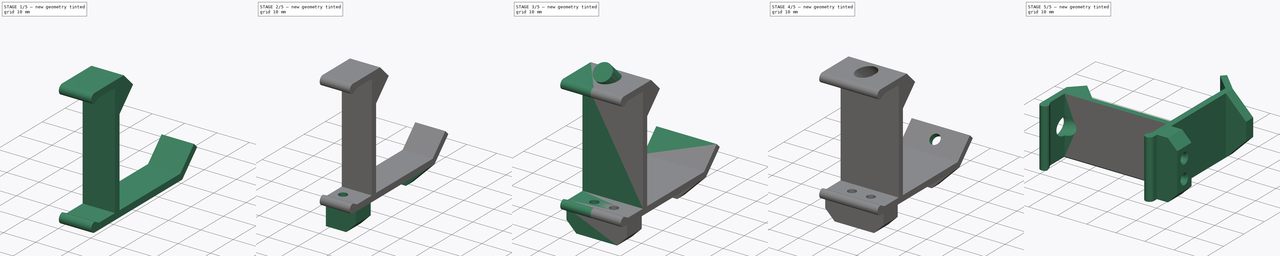
[diagram: build sequence overview — one tinted view per stage of 5, left to right]
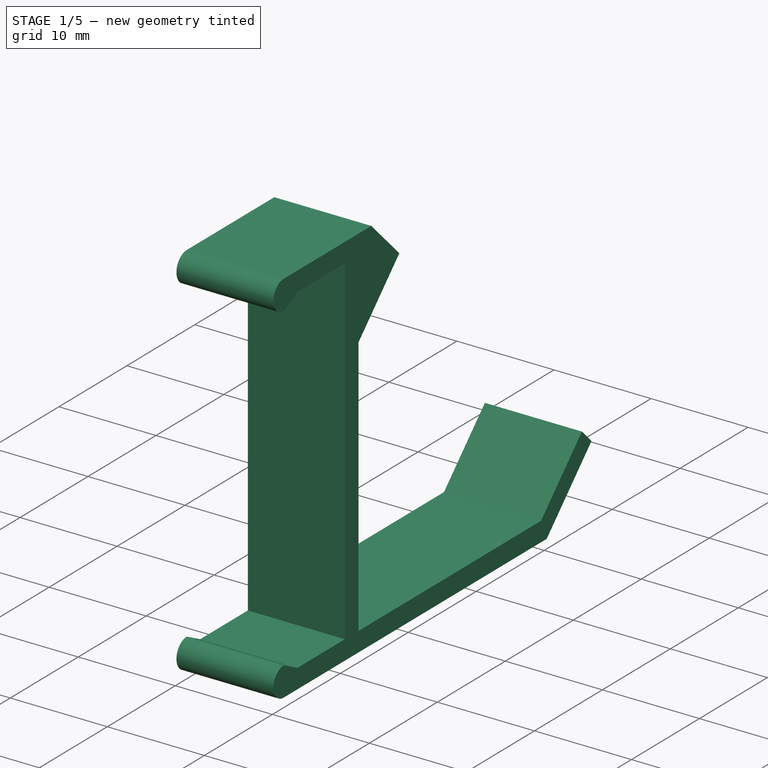
[diagram: stage 1 of 5 — iso view after this stage's code; geometry added in this stage tinted green]
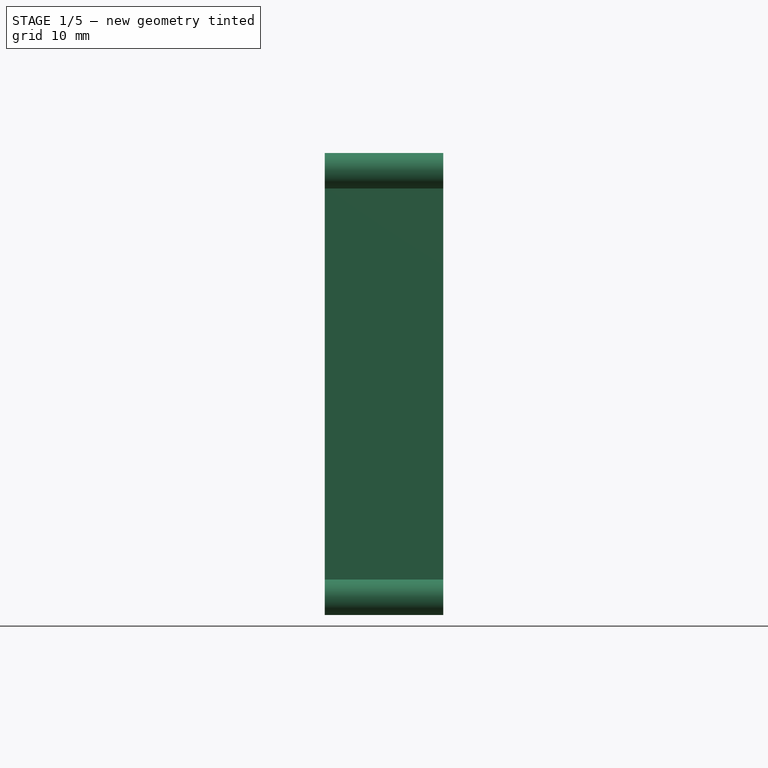
[diagram: stage 1 of 5 — front view after this stage's code; geometry added in this stage tinted green]
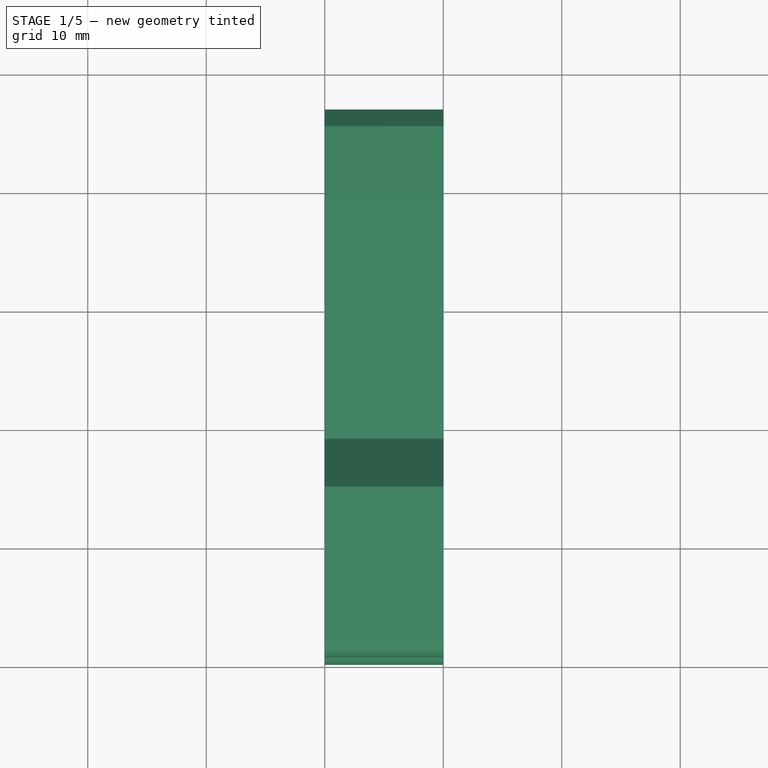
[diagram: stage 1 of 5 — top view after this stage's code; geometry added in this stage tinted green]
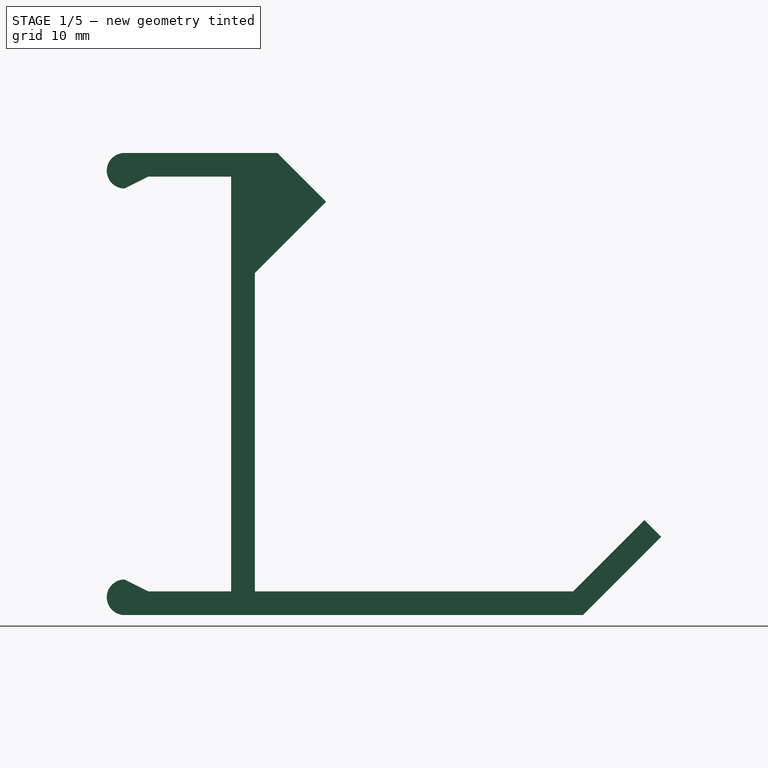
[diagram: stage 1 of 5 — right view after this stage's code; geometry added in this stage tinted green]
FCSTD DOCUMENT  (FreeCAD 0.14R3692 (Git))
Label: board-bracket
License: The MIT License
LicenseURL: http://opensource.org/licenses/MIT
objects: Sketcher::SketchObject×5, PartDesign::Pad×3, Part::Chamfer×3, Part::Feature×3, PartDesign::Pocket×2, Part::FeaturePython×2, Part::Thickness×1, Part::Cylinder×1, Part::Mirroring×1, Part::MultiFuse×1, Part::Cut×1, App::DocumentObjectGroup×1
note: 28 computed .brp shape members not serialized (recipe doc carries the construction recipe); baked Part::Feature solids carry a one-line shape summary decoded from their .brp

FEATURE [Sketcher::SketchObject] Sketch  label="bracket-sketch"
  Placement = pos=(0,0,0) rot=(0.57735,0.57735,0.57735;2.0944rad)
  sketch-geometry (6):
    g0: LineSegment StartX=-11.3137 StartY=16.9706 StartZ=0 EndX=-17.3241 EndY=10.9602 EndZ=0
    g1: LineSegment StartX=-17.3241 StartY=10.9602 StartZ=0 EndX=-17.3241 EndY=-15.9099 EndZ=0
    g2: LineSegment StartX=-17.3241 StartY=-15.9099 StartZ=0 EndX=9.54594 EndY=-15.9099 EndZ=0
    g3: LineSegment StartX=9.54594 StartY=-15.9099 StartZ=0 EndX=15.5563 EndY=-9.89949 EndZ=0
    g4: LineSegment StartX=15.5563 StartY=-9.89949 StartZ=0 EndX=-11.3137 EndY=16.9706 EndZ=0
    g5: LineSegment [constr] StartX=-14.1421 StartY=14.1421 StartZ=0 EndX=12.7279 EndY=-12.7279 EndZ=0
  constraints (16):
    c: Coincident(g0,g1)
    c: Coincident(g2,g3)
    c: Perpendicular(g1,g2)
    c: Equal(g3,g0)
    c: Angle(g3,g2) = 2.35619
    c: Perpendicular(g3,g4)
    c: Perpendicular(g0,g4)
    c: PointOnObject(g-1,g5)
    c: Distance(g-1,g5) = 18
    c: Distance(g-1,g5) = 20
    c: Perpendicular(g0,g5)
    c: PointOnObject(g5,g3)
    c: Angle(g4,g-1) = 0.785398
    c: Distance(g5,g0) = 4
    c: PointOnObject(g5,g0)
    c: Distance(g5,g0) = 4.5
FEATURE [PartDesign::Pad] Pad  label="bracket-pad"
  Length = 10
  Length2 = 100
  Placement = pos=(0,0,0) rot=(0.57735,0.57735,0.57735;2.0944rad)
  Sketch = -> Sketch
  Type = 0
FEATURE [Part::Thickness] Thickness  label="bracket-thickness"
  Faces = -> Pad [Face7,Face5,Face6]
  Intersection = false
  Join = 2
  Mode = 0
  SelfIntersection = false
  Value = 2
FEATURE [Sketcher::SketchObject] Sketch001  label="board-sketch"
  ExternalGeometry = -> [Thickness]
  Placement = pos=(10,0,0) rot=(0.57735,0.57735,0.57735;2.0944rad)
  Support = -> Thickness [Face5]
  sketch-geometry (13):
    g0: LineSegment StartX=-19.3241 StartY=-17.9099 StartZ=0 EndX=-28.3241 EndY=-17.9099 EndZ=0
    g1: ArcOfCircle CenterX=-28.3241 CenterY=-16.4099 CenterZ=0 NormalX=0 NormalY=0 NormalZ=1 Radius=1.5 StartAngle=1.5708 EndAngle=4.71239
    g2: LineSegment StartX=-28.3241 StartY=-14.9099 StartZ=0 EndX=-26.3241 EndY=-15.9099 EndZ=0
    g3: LineSegment StartX=-26.3241 StartY=-15.9099 StartZ=0 EndX=-19.3241 EndY=-15.9099 EndZ=0
    g4: LineSegment StartX=-19.3241 StartY=-15.9099 StartZ=0 EndX=-19.3241 EndY=-17.9099 EndZ=0
    g5: LineSegment StartX=-15.4332 StartY=21.0901 StartZ=0 EndX=-28.3241 EndY=21.0901 EndZ=0
    g6: ArcOfCircle CenterX=-28.3241 CenterY=19.5901 CenterZ=0 NormalX=0 NormalY=0 NormalZ=1 Radius=1.5 StartAngle=1.5708 EndAngle=4.7124
    g7: LineSegment StartX=-28.3241 StartY=18.0901 StartZ=0 EndX=-26.3241 EndY=19.0901 EndZ=0
    g8: LineSegment StartX=-26.3241 StartY=19.0901 StartZ=0 EndX=-19.3241 EndY=19.0901 EndZ=0
    g9: LineSegment StartX=-15.4332 StartY=21.0901 StartZ=0 EndX=-12.7279 EndY=18.3848 EndZ=0
    g10: LineSegment StartX=-19.3241 StartY=19.0901 StartZ=0 EndX=-19.3241 EndY=11.7886 EndZ=0
    g11: LineSegment StartX=-19.3241 StartY=11.7886 StartZ=0 EndX=-12.7279 EndY=18.3848 EndZ=0
    g12: LineSegment StartX=-19.3241 StartY=-15.9099 StartZ=0 EndX=-19.3241 EndY=-17.9099 EndZ=0
  constraints (34):
    c: Horizontal(g0)
    c: Tangent(g0,g1)
    c: Coincident(g2,g3)
    c: Horizontal(g3)
    c: Coincident(g3,g4)
    c: Coincident(g4,g0)
    c: DistanceY(g4) = -2
    c: Radius(g1) = 1.5
    c: DistanceX(g3) = 7
    c: DistanceX(g0) = -9
    c: Horizontal(g5)
    c: Tangent(g5,g6)
    c: Coincident(g7,g8)
    c: Horizontal(g8)
    c: Equal(g8,g3)
    c: Equal(g6,g1)
    c: Coincident(g6,g7)
    c: Distance(g8,g5) = 2
    c: Coincident(g1,g2)
    c: DistanceX(g1,g2) = 2
    c: Equal(g7,g2)
    c: Coincident(g9,g5)
    c: Coincident(g10,g8)
    c: Vertical(g10)
    c: Coincident(g11,g10)
    c: DistanceY(g8,g3) = -35
    c: DistanceY(g6,g1) = -33
    c: Coincident(g12,g3)
    c: Coincident(g12,g0)
    c: Vertical(g4)
    c: Coincident(g10,g-4)
    c: Perpendicular(g9,g11)
    c: Coincident(g9,g-4)
    c: Coincident(g0,g-3)
FEATURE [PartDesign::Pad] Pad001  label="board-pad"
  Length = 10
  Length2 = 100
  Reversed = true
  Sketch = -> Sketch001
  Type = 0
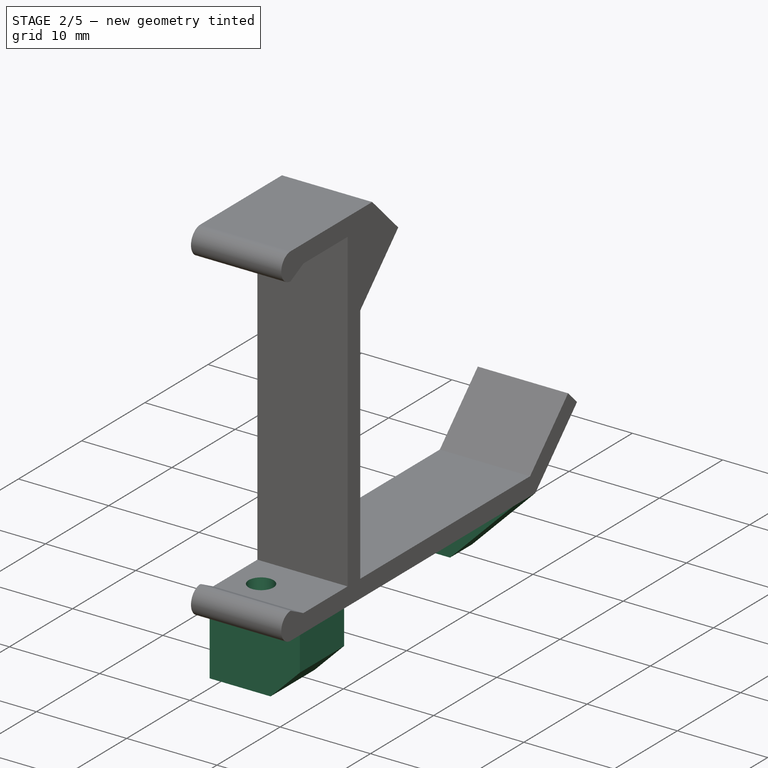
[diagram: stage 2 of 5 — iso view after this stage's code; geometry added in this stage tinted green]
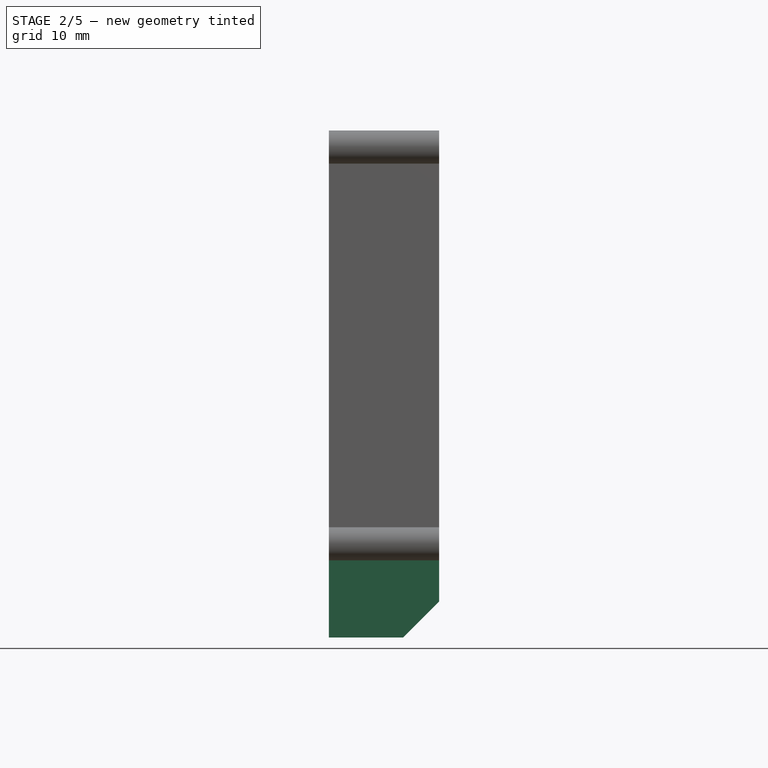
[diagram: stage 2 of 5 — front view after this stage's code; geometry added in this stage tinted green]
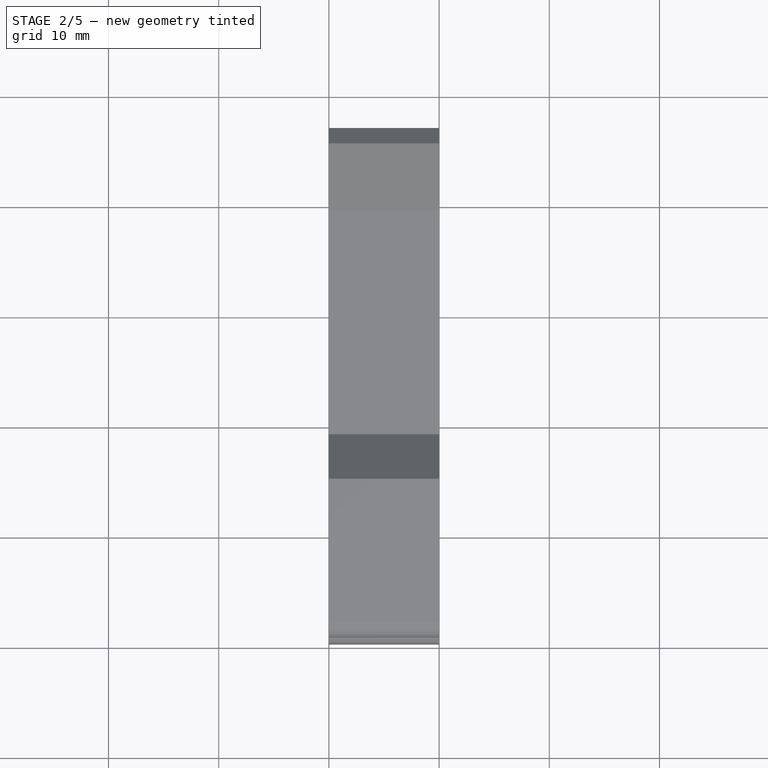
[diagram: stage 2 of 5 — top view after this stage's code; geometry added in this stage tinted green]
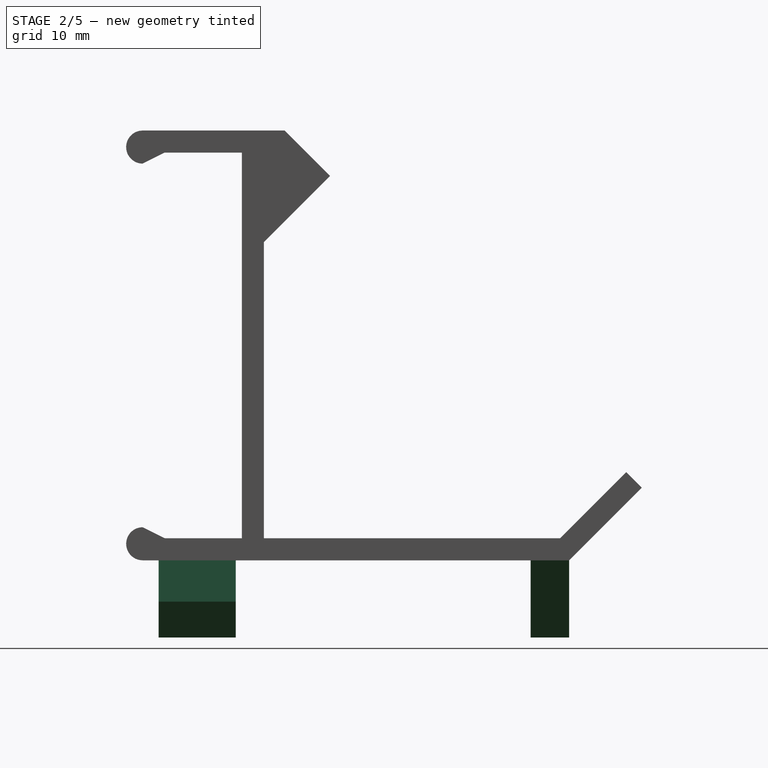
[diagram: stage 2 of 5 — right view after this stage's code; geometry added in this stage tinted green]
FEATURE [Sketcher::SketchObject] Sketch003  label="driver-sketch"
  ExternalGeometry = -> [Pad001]
  Placement = pos=(10,0,0) rot=(0.57735,0.57735,0.57735;2.0944rad)
  Support = -> Pad001 [Face15]
  sketch-geometry (8):
    g0: LineSegment StartX=-26.8756 StartY=-17.9099 StartZ=0 EndX=-19.8756 EndY=-17.9099 EndZ=0
    g1: LineSegment StartX=-19.8756 StartY=-17.9099 StartZ=0 EndX=-19.8756 EndY=-24.9099 EndZ=0
    g2: LineSegment StartX=-19.8756 StartY=-24.9099 StartZ=0 EndX=-26.8756 EndY=-24.9099 EndZ=0
    g3: LineSegment StartX=-26.8756 StartY=-24.9099 StartZ=0 EndX=-26.8756 EndY=-17.9099 EndZ=0
    g4: LineSegment StartX=6.87437 StartY=-17.9099 StartZ=0 EndX=10.3744 EndY=-17.9099 EndZ=0
    g5: LineSegment StartX=10.3744 StartY=-17.9099 StartZ=0 EndX=10.3744 EndY=-24.9099 EndZ=0
    g6: LineSegment StartX=10.3744 StartY=-24.9099 StartZ=0 EndX=6.87437 EndY=-24.9099 EndZ=0
    g7: LineSegment StartX=6.87437 StartY=-24.9099 StartZ=0 EndX=6.87437 EndY=-17.9099 EndZ=0
  constraints (23):
    c: Coincident(g0,g1)
    c: Coincident(g1,g2)
    c: Coincident(g2,g3)
    c: Coincident(g3,g0)
    c: Horizontal(g0)
    c: Horizontal(g2)
    c: Vertical(g1)
    c: Vertical(g3)
    c: Coincident(g5,g6)
    c: Coincident(g6,g7)
    c: Coincident(g7,g4)
    c: Horizontal(g4)
    c: Horizontal(g6)
    c: Vertical(g5)
    c: Vertical(g7)
    c: DistanceY(g3) = 7
    c: DistanceX(g2) = -7
    c: Equal(g5,g3)
    c: PointOnObject(g0,g-3)
    c: Coincident(g4,g5)
    c: Coincident(g4,g-3)
    c: DistanceX(g0,g4) = 37.25
    c: DistanceX(g6) = -3.5
FEATURE [PartDesign::Pad] Pad002  label="driver-pad"
  Length = 10
  Length2 = 100
  Reversed = true
  Sketch = -> Sketch003
  Type = 0
FEATURE [Sketcher::SketchObject] Sketch004  label="driver-screw-hole-sketch"
  Placement = pos=(0,0,-24.9099) rot=(1,0,0;3.14159rad)
  Support = -> Pad002 [Face23]
  sketch-geometry (2):
    g0: Circle CenterX=3.25 CenterY=23.3756 CenterZ=0 NormalX=0 NormalY=0 NormalZ=1 Radius=1.375
    g1: LineSegment [constr] StartX=3.25 StartY=23.3756 StartZ=0 EndX=10 EndY=23.3756 EndZ=0
  constraints (4):
    c: DistanceX(g-1,g0) = 3.25
    c: Radius(g0) = 1.375
    c: Horizontal(g1)
    c: Coincident(g0,g1)
FEATURE [PartDesign::Pocket] Pocket001  label="driver-screw-hole-pocket"
  Length = 10
  Sketch = -> Sketch004
  Type = 0
FEATURE [Part::Chamfer] Chamfer  label="driver-side-chamfer"
  Base = -> Pocket001
  Edges = 2 edges: [Edge42 r=3.25,Edge46 r=7]
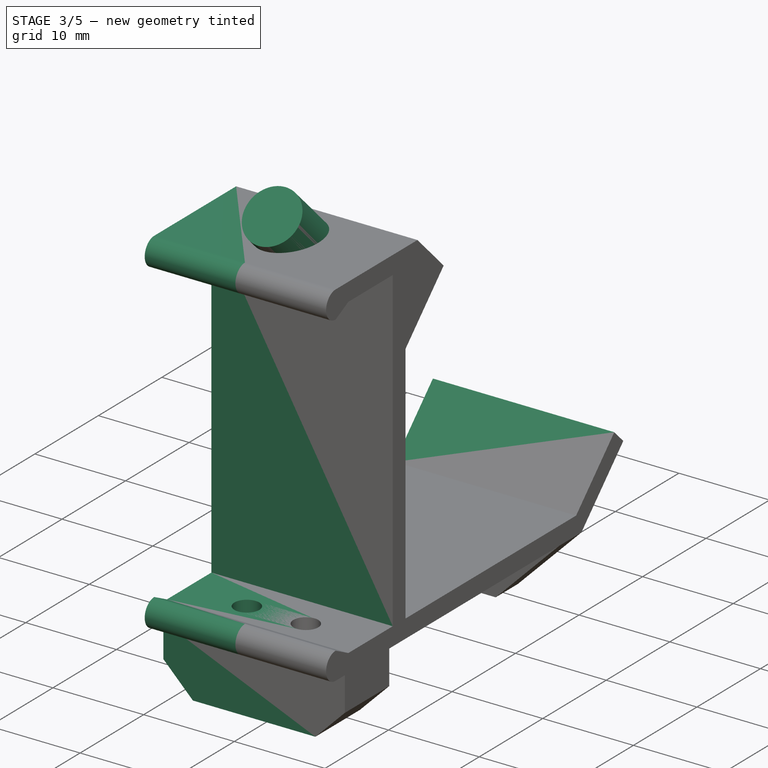
[diagram: stage 3 of 5 — iso view after this stage's code; geometry added in this stage tinted green]
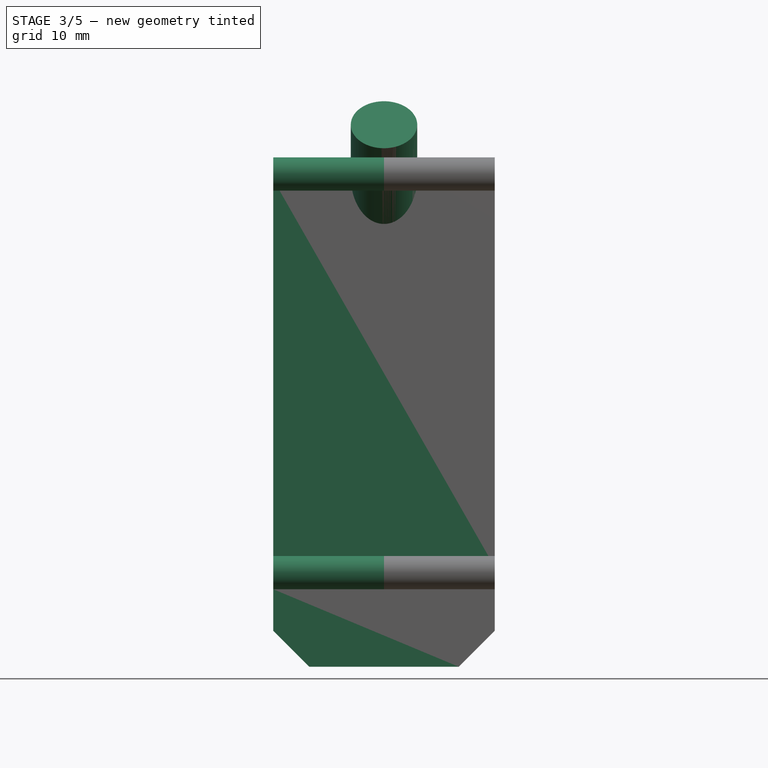
[diagram: stage 3 of 5 — front view after this stage's code; geometry added in this stage tinted green]
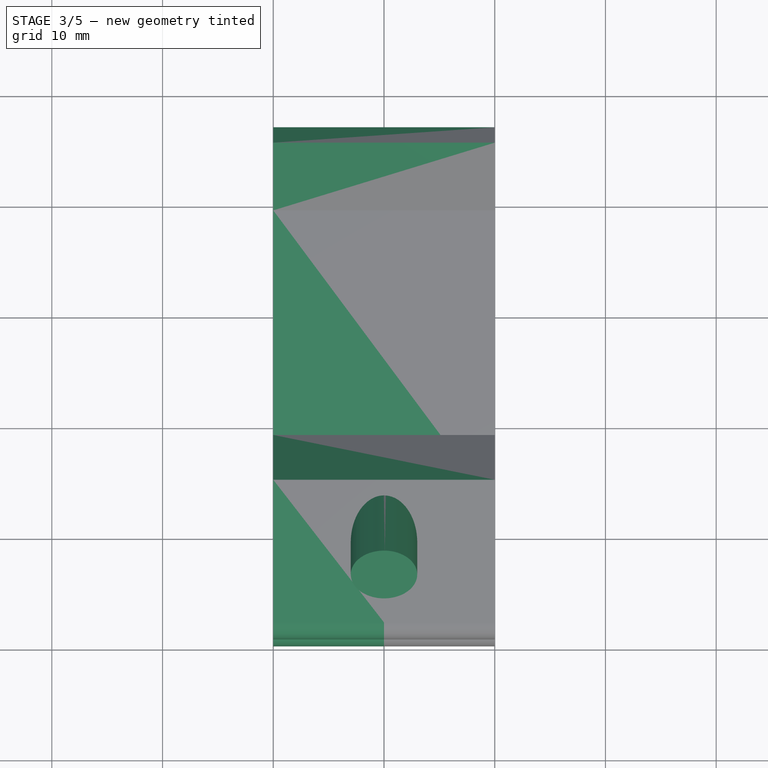
[diagram: stage 3 of 5 — top view after this stage's code; geometry added in this stage tinted green]
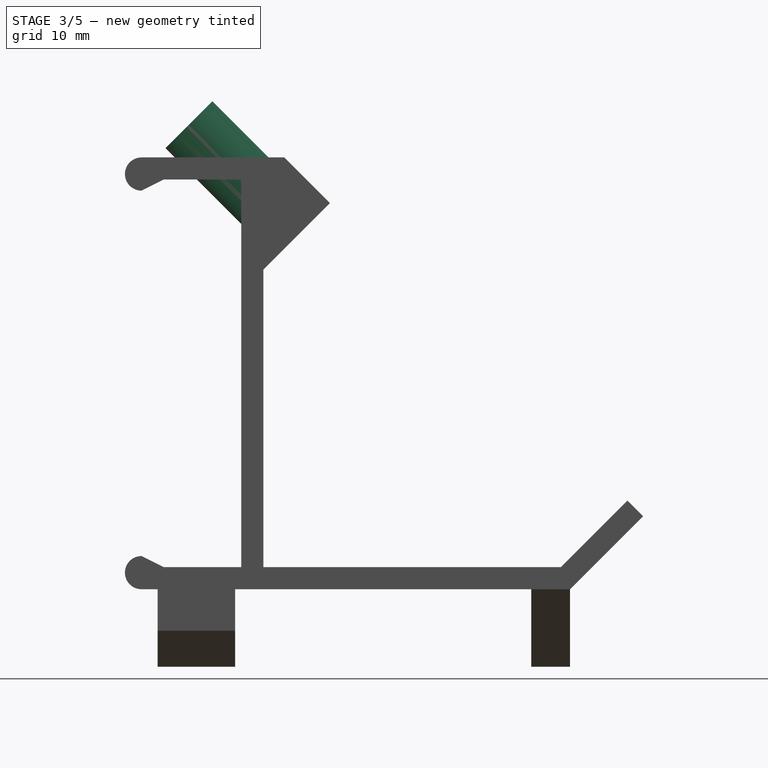
[diagram: stage 3 of 5 — right view after this stage's code; geometry added in this stage tinted green]
FEATURE [Part::Cylinder] Cylinder  label="screw-head-top-cylinder"
  Angle = 360
  Height = 12
  Placement = pos=(0,-15.5563,15.5563) rot=(1,0,0;0.785398rad)
  Radius = 3
FEATURE [Part::Mirroring] Part__Mirroring  label="driver-side-chamfer-mirror"
  Base = (0,0,0)
  Normal = (1,0,0)
  Source = -> Chamfer
FEATURE [Part::MultiFuse] Fusion001  label="bracket-fusion"
  Shapes = -> [Chamfer,Part__Mirroring]
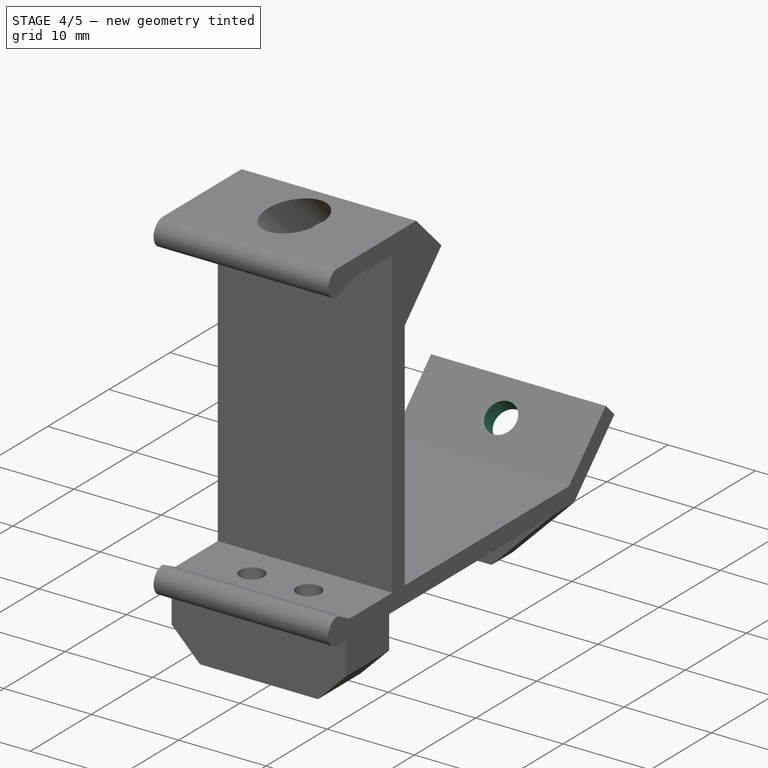
[diagram: stage 4 of 5 — iso view after this stage's code; geometry added in this stage tinted green]
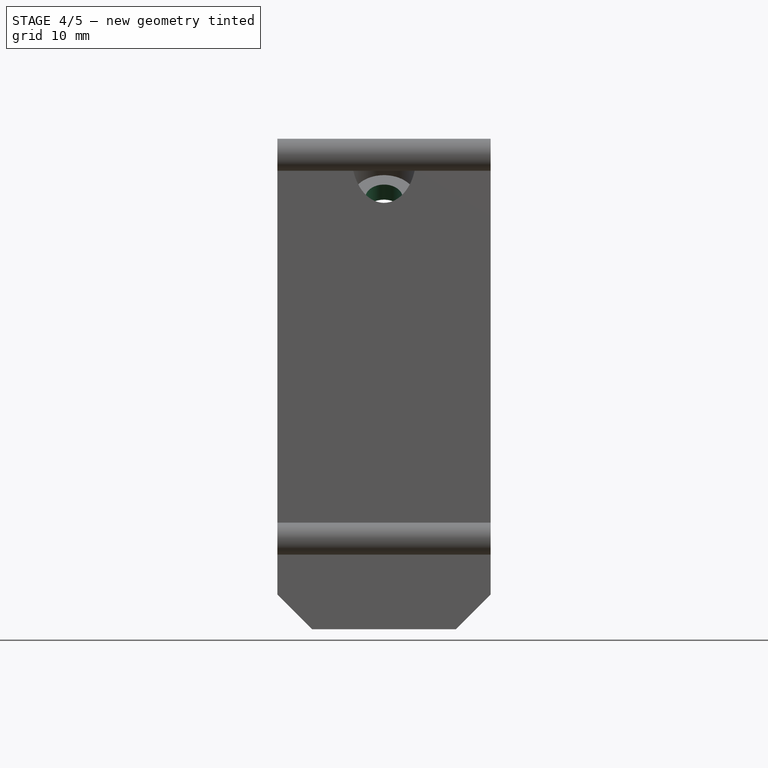
[diagram: stage 4 of 5 — front view after this stage's code; geometry added in this stage tinted green]
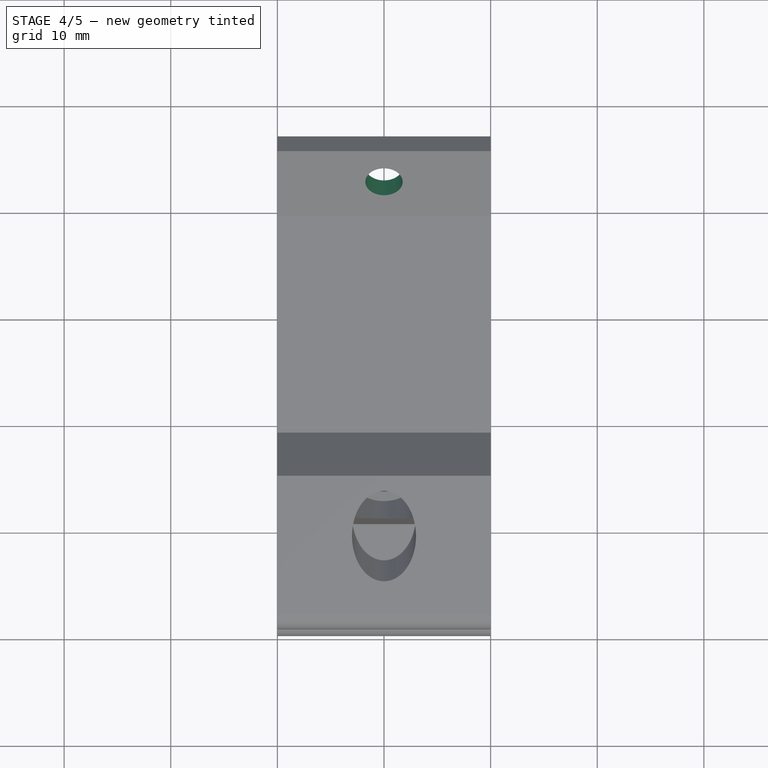
[diagram: stage 4 of 5 — top view after this stage's code; geometry added in this stage tinted green]
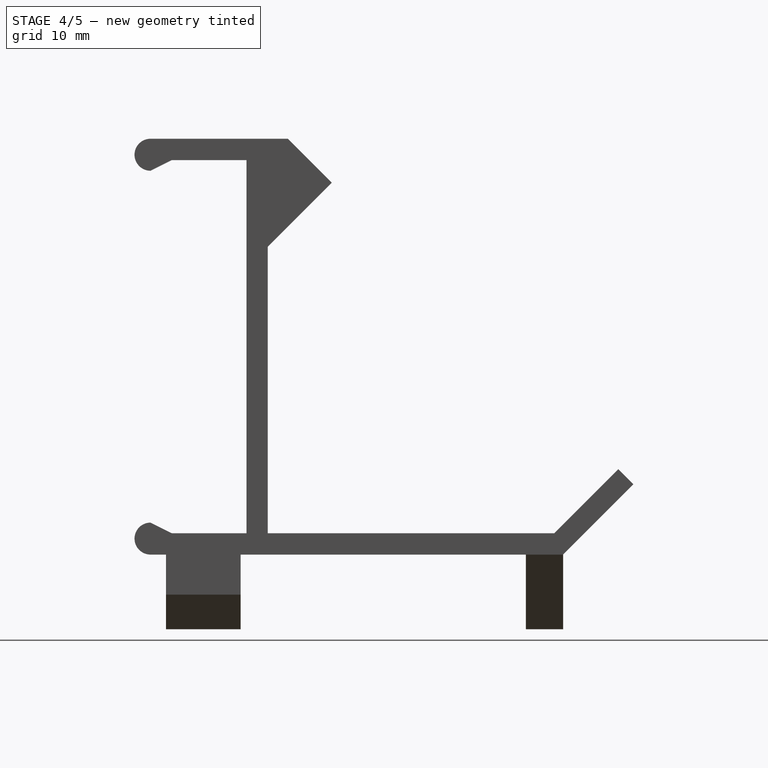
[diagram: stage 4 of 5 — right view after this stage's code; geometry added in this stage tinted green]
FEATURE [Sketcher::SketchObject] Sketch002  label="bracket-screw-hole-sketch"
  Placement = pos=(0,14.1421,-14.1421) rot=(1,0,0;3.92699rad)
  Support = -> Fusion001 [Face20]
  sketch-geometry (1):
    g0: Circle CenterX=0 CenterY=0 CenterZ=0 NormalX=0 NormalY=0 NormalZ=1 Radius=1.75
  constraints (2):
    c: Coincident(g0,g-1)
    c: Radius(g0) = 1.75
FEATURE [PartDesign::Pocket] Pocket  label="bracket-screw-hole-pocket"
  Length = 42
  Sketch = -> Sketch002
  Type = 0
FEATURE [Part::Cut] Cut  label="screw-head-top-cut"
  Base = -> Pocket
  Tool = -> Cylinder
FEATURE [Part::FeaturePython] Clone  label="board-bracket"  # Draft clone (typed FeaturePython)
  Objects = -> [Cut]
  Scale = (1,1,1)
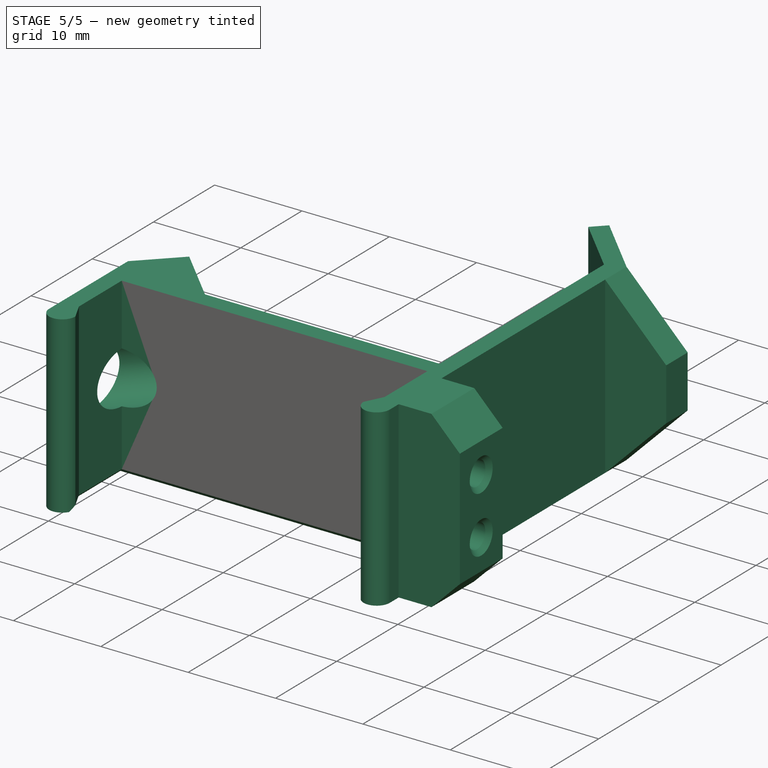
[diagram: stage 5 of 5 — iso view after this stage's code; geometry added in this stage tinted green]
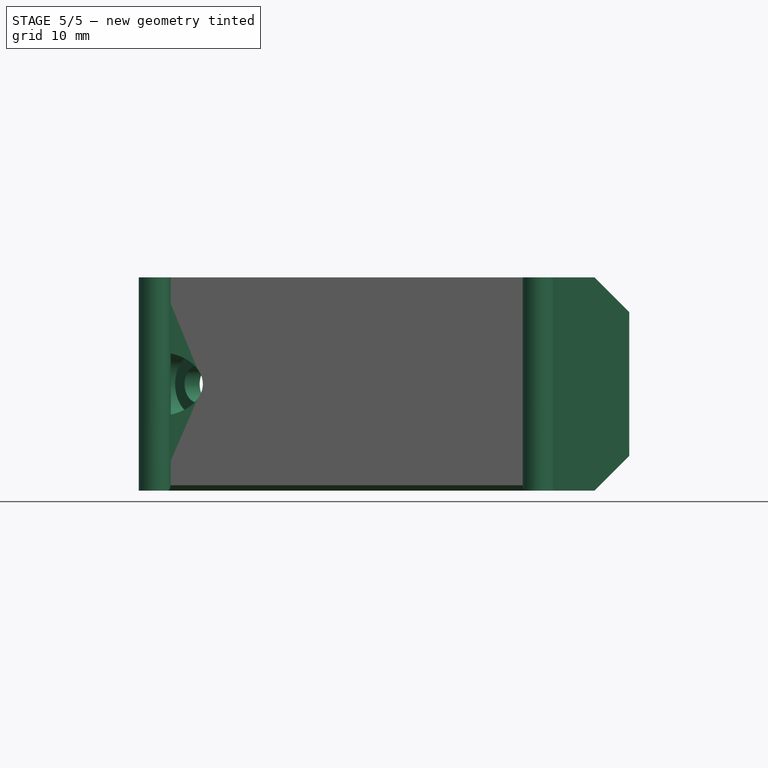
[diagram: stage 5 of 5 — front view after this stage's code; geometry added in this stage tinted green]
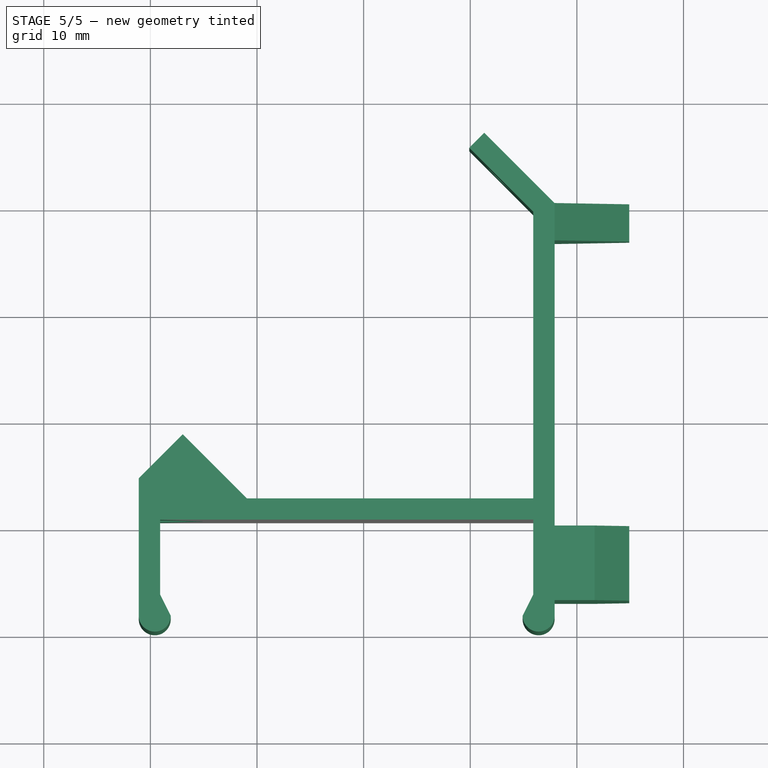
[diagram: stage 5 of 5 — top view after this stage's code; geometry added in this stage tinted green]
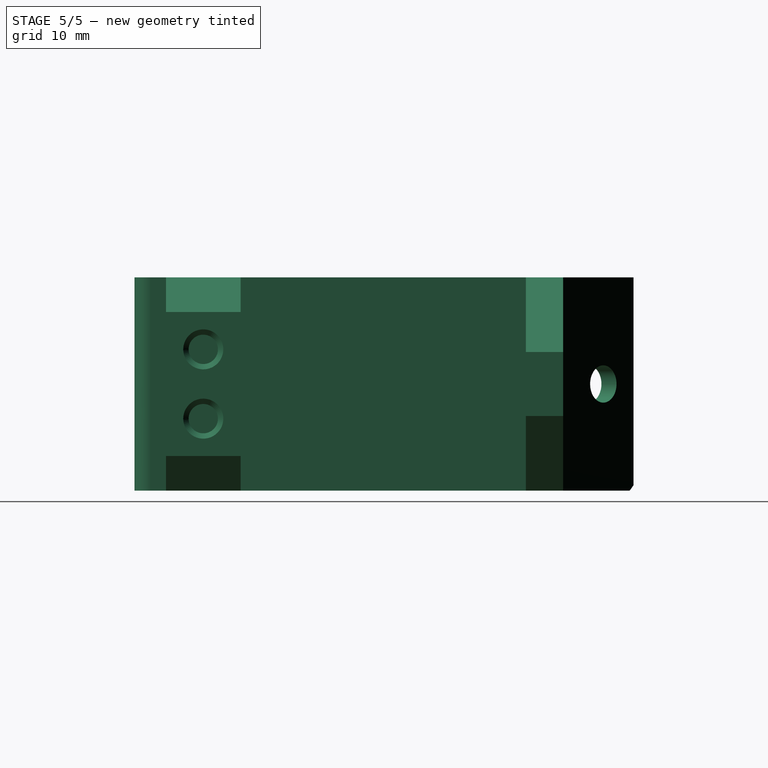
[diagram: stage 5 of 5 — right view after this stage's code; geometry added in this stage tinted green]
FEATURE [Part::Feature] Part__Feature  label="arduino-breadboard"
  Placement = pos=(22.25,-19.5741,1.5901) rot=(0.57735,-0.57735,0.57735;2.0944rad)
  shape: bbox 45.5 x 15.58 x 34.5 mm, 34 faces (baked)
FEATURE [Part::Feature] Part__Feature001  label="driver-board-right"
  Placement = pos=(-16.425,-8.25063,-24.9099) rot=(0.707107,-0.707107,0;3.14159rad)
  shape: bbox 31.5 x 35.1 x 9.299 mm, 54 faces (baked)
FEATURE [Part::Feature] Part__Feature002  label="driver-board-left"
  Placement = pos=(16.425,-8.25063,-24.9099) rot=(0.707107,-0.707107,0;3.14159rad)
  shape: bbox 31.5 x 35.1 x 9.299 mm, 54 faces (baked)
FEATURE [App::DocumentObjectGroup] Group  label="components"
  Group = -> [Part__Feature,Part__Feature001,Part__Feature002]
FEATURE [Part::Chamfer] Chamfer001  label="screw-chamfer"
  Base = -> Clone
  Edges = 2 edges r=0.5: [Edge31,Edge32]
FEATURE [Part::Chamfer] Chamfer002  label="printing-chamfer"
  Base = -> Chamfer001
  Edges = 9 edges r=0.5: [Edge47,Edge49,Edge51,Edge52,Edge53,Edge54,Edge55,Edge60,Edge61]
FEATURE [Part::FeaturePython] Clone001  label="board-bracket (printing)"  # Draft clone (typed FeaturePython)
  Objects = -> [Chamfer002]
  Placement = pos=(0,0,0) rot=(0,-1,0;1.5708rad)
  Scale = (1,1,1)
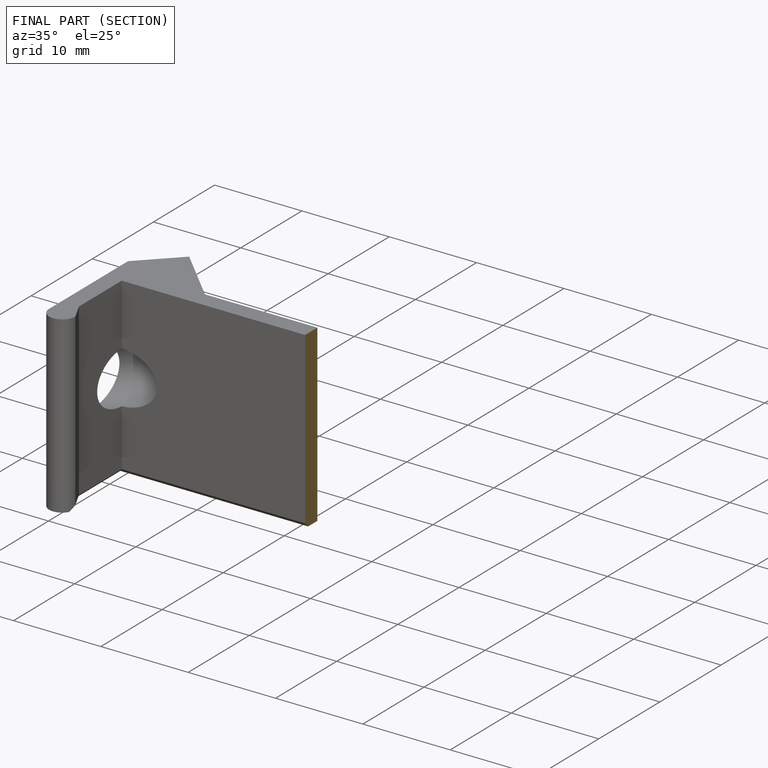
[diagram: finished part — half-section view (interior)]
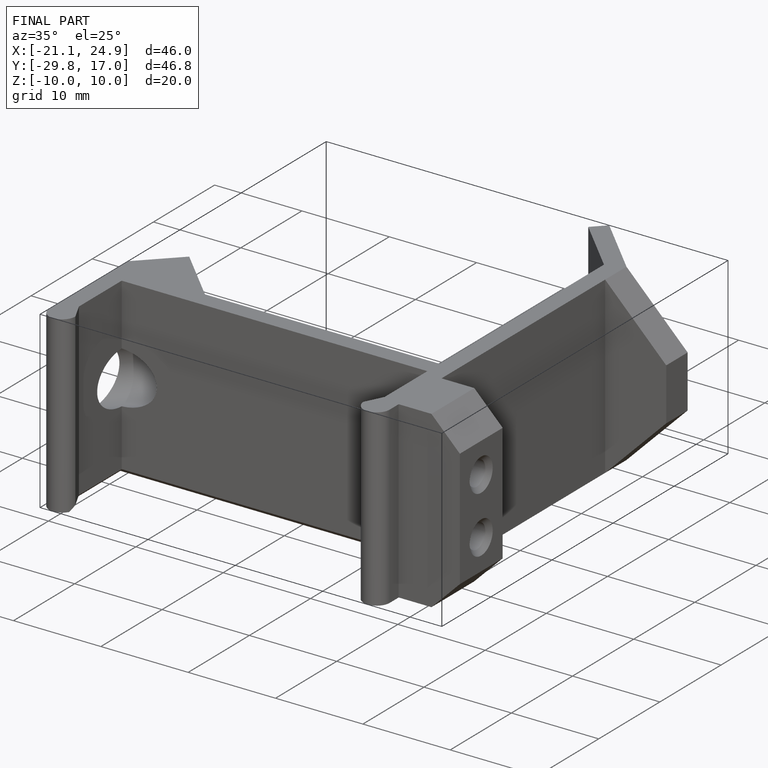
[diagram: finished part — iso view with bounding-box wireframe]
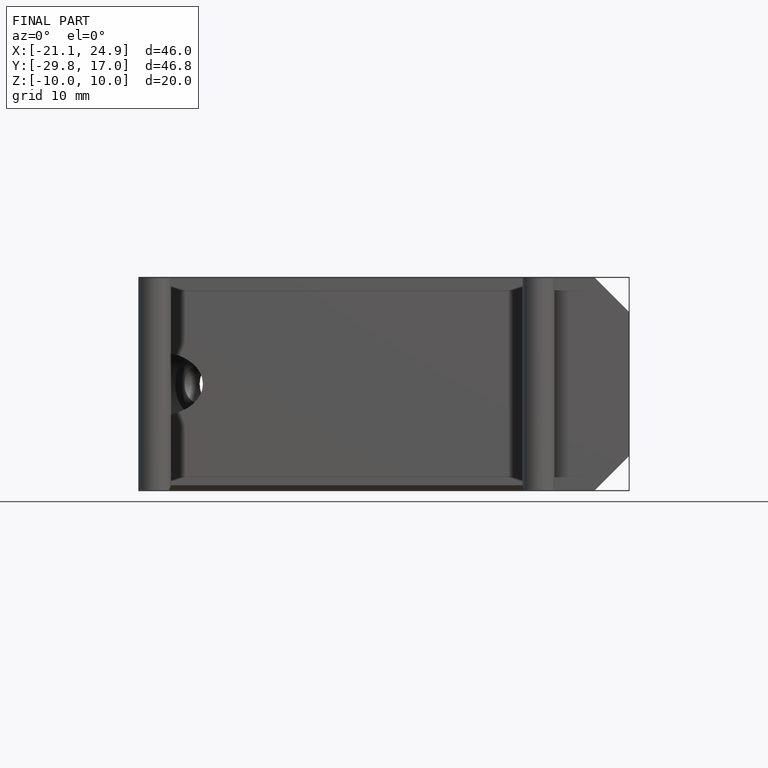
[diagram: finished part — front view with bounding-box wireframe]
